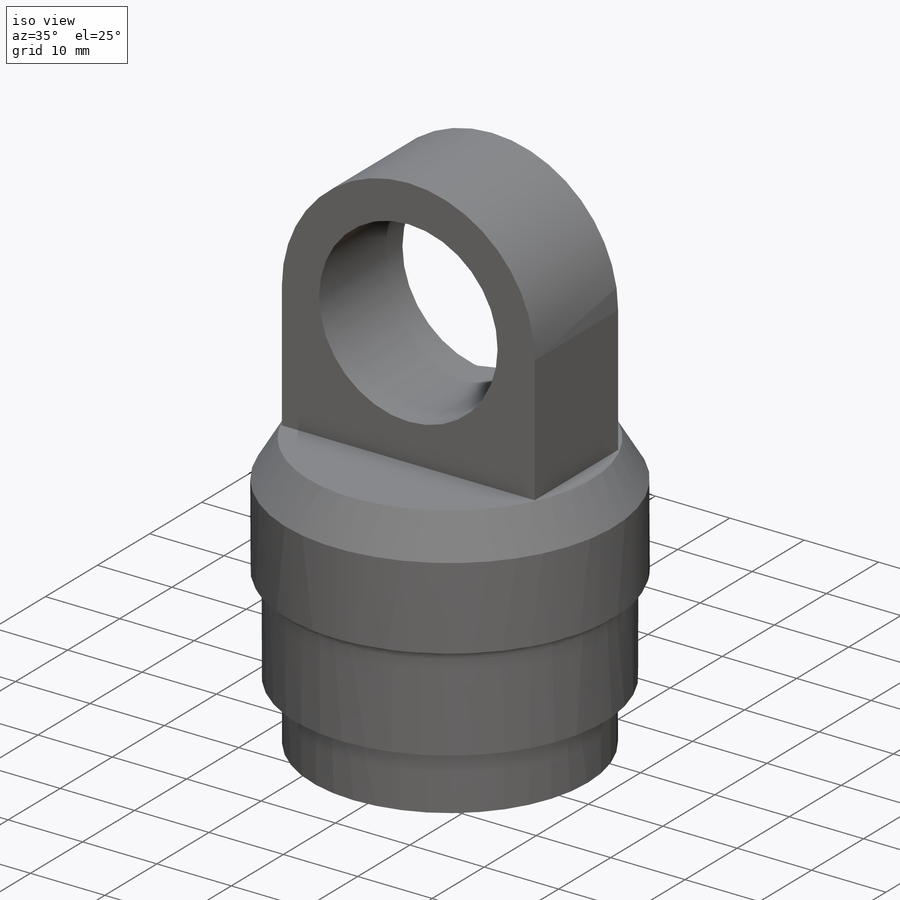
[diagram: iso view]
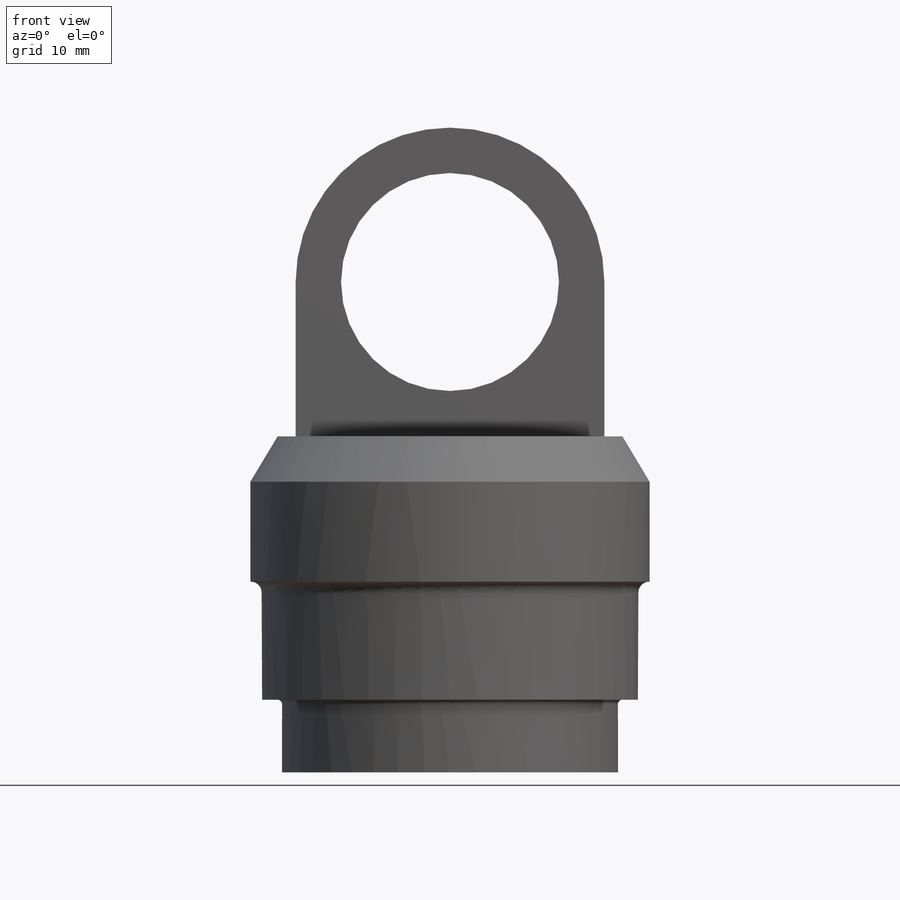
[diagram: front view]
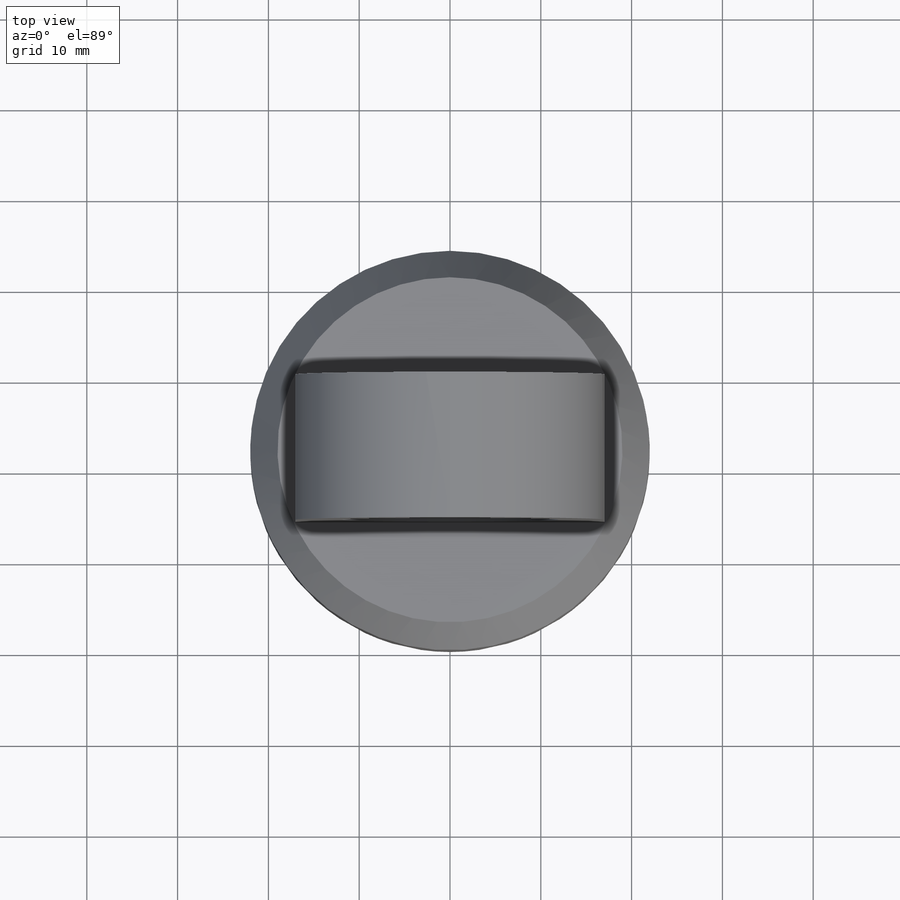
[diagram: top view]
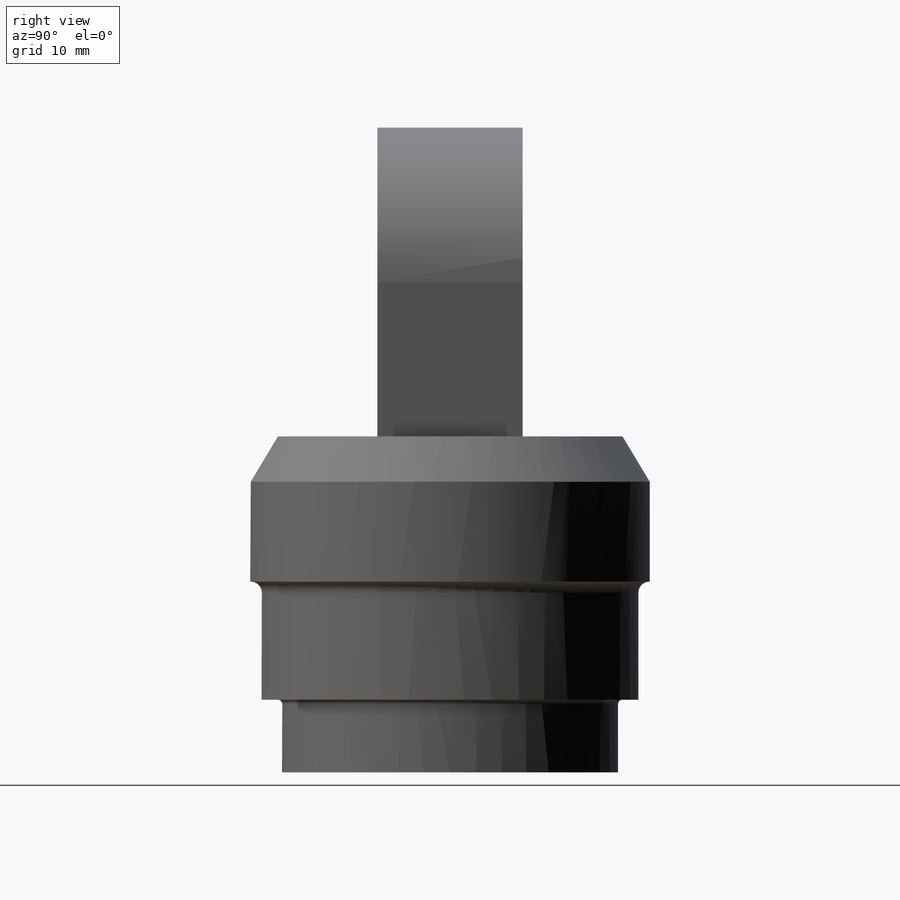
[diagram: right view]
SOLIDWORKS PART (.sldprt)
format: sldprt  version: not decoded by parser v0  size: 216,576 bytes
history: native  units: mm
features: sketch x6, cut_extrude x4, fillet x3, extrude x2, material x1, chamfer x1 (+12 scaffold rows collapsed)
feature tree (29):
  scaffold x12  (default folders/planes/origin — collapsed)
  material  "Material <not specified>"
  sketch  "Sketch1"  dims[D1=34.0mm]
  extrude  "Boss-Extrude1"  Depth=16mm
  fillet  "Fillet1"  Radius=17mm
  sketch  "Sketch2"  dims[D1=20.0mm]
  cut_extrude  "Cut-Extrude1"  [1 undecoded]
  sketch  "Sketch3"  dims[D1=~26.141553mm]
  extrude  "Boss-Extrude2"  Depth=37mm
  sketch  "Sketch5"  dims[D1=~18.958974mm]
  cut_extrude  "Cut-Extrude2"  Depth=8mm
  sketch  "Sketch6"  dims[D1=~20.941207mm]
  cut_extrude  "Cut-Extrude3"  Depth=13mm
  fillet  "Fillet2"  Radius=1.2mm
  sketch  "Sketch7"  dims[D1=~5.922289mm]
  cut_extrude  "Cut-Extrude4"  Depth=28mm
  fillet  "Fillet3"  Radius=0.5mm
  chamfer  "Chamfer2"  Distance=3mm Angle=59deg
decode coverage: 15 of 16 modeling features carry decoded parameters
note: ~ marks probable driven/reference dimensions
note: 1 parameter value undecoded
note: suppression state not decoded; provenance and decode notes live in map.json
